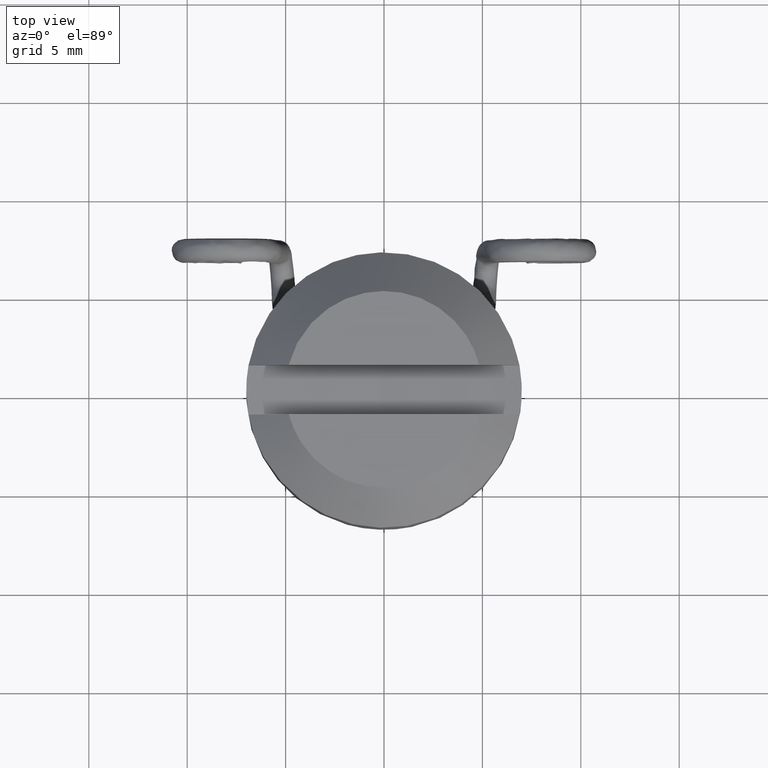
[diagram: clean part render]
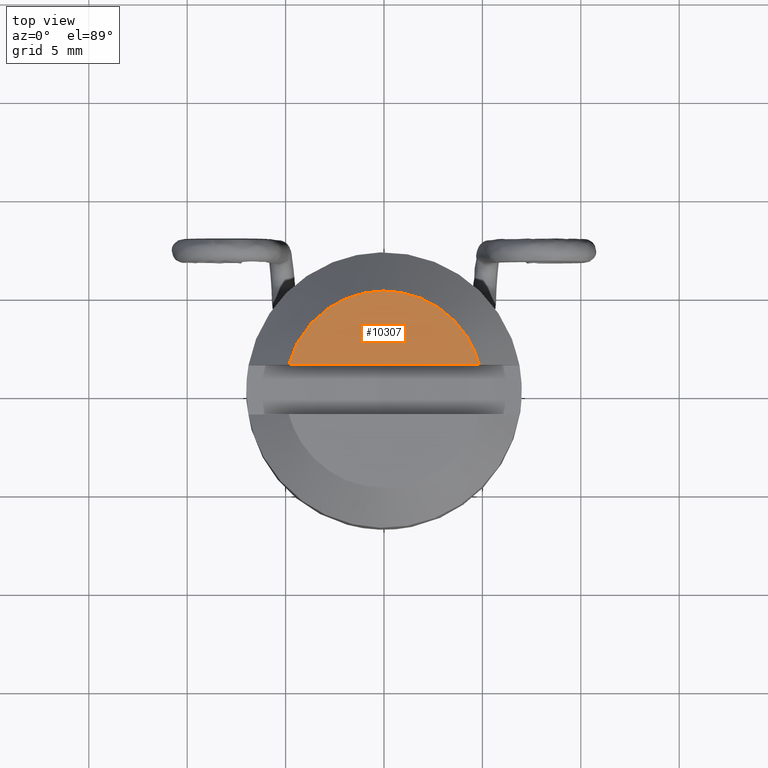
[diagram: same view with one face highlighted and labeled with its STEP entity id]
A machine part, top view. The second image highlights one B-rep face of the part: STEP entity #10307.
In plain terms, the highlighted face is a freeform B-spline surface patch.
Its self-contained STEP definition (entity closure, byte-faithful):
#10071=CARTESIAN_POINT('',(4.121741454897280,2.830414700884180,20.202431000000001));
#10072=VERTEX_POINT('',#10071);
#10082=CARTESIAN_POINT('',(-4.976792397958250,-0.481183361749938,20.202431000000001));
#10083=VERTEX_POINT('',#10082);
#10084=CARTESIAN_POINT('',(4.121741454897280,2.830414700884180,20.202431000000001));
#10085=CARTESIAN_POINT('',(-4.976792397958250,-0.481183361749938,20.202431000000001));
#10086=QUASI_UNIFORM_CURVE('',1,(#10084,#10085),.UNSPECIFIED.,.F.,.U.);
#10087=EDGE_CURVE('',#10072,#10083,#10086,.T.);
#10280=CARTESIAN_POINT('',(-4.976792397958250,-0.481183361749938,20.202431000000001));
#10281=CARTESIAN_POINT('',(-5.349515427264173,3.373823453214863,20.202431000000008));
#10282=CARTESIAN_POINT('',(-1.710101886121958,4.698462678268512,20.202431000000001));
#10283=CARTESIAN_POINT('',(1.929311655020260,6.023101903322163,20.202431000000008));
#10284=CARTESIAN_POINT('',(4.121741454897279,2.830414700884177,20.202431000000001));
#10292=(BOUNDED_CURVE()B_SPLINE_CURVE(2,(#10280,#10281,#10282,#10283,#10284),.UNSPECIFIED.,.F.,.U.)B_SPLINE_CURVE_WITH_KNOTS((3,2,3),(0.0,0.500000000000000,1.0),.UNSPECIFIED.)CURVE()GEOMETRIC_REPRESENTATION_ITEM()RATIONAL_B_SPLINE_CURVE((1.0,0.790569415042094,1.0,0.790569415042094,1.0))REPRESENTATION_ITEM(''));
#10293=EDGE_CURVE('',#10083,#10072,#10292,.T.);
#10298=CARTESIAN_POINT('',(4.577363205913770,-0.754967714006874,20.202431000000001));
#10299=CARTESIAN_POINT('',(-5.455441061870426,-0.754967714006874,20.202431000000001));
#10300=CARTESIAN_POINT('',(4.577363205913770,5.273769563207816,20.202431000000001));
#10301=CARTESIAN_POINT('',(-5.455441061870426,5.273769563207816,20.202431000000001));
#10302=B_SPLINE_SURFACE_WITH_KNOTS('',1,1,((#10298,#10300),(#10299,#10301)),.UNSPECIFIED.,.F.,.F.,.U.,(2,2),(2,2),(0.0,10.032804267784201),(0.0,6.028737277214691),.UNSPECIFIED.);
#10303=ORIENTED_EDGE('',*,*,#10087,.F.);
#10304=ORIENTED_EDGE('',*,*,#10293,.F.);
#10305=EDGE_LOOP('',(#10303,#10304));
#10306=FACE_OUTER_BOUND('',#10305,.T.);
#10307=ADVANCED_FACE('',(#10306),#10302,.F.);